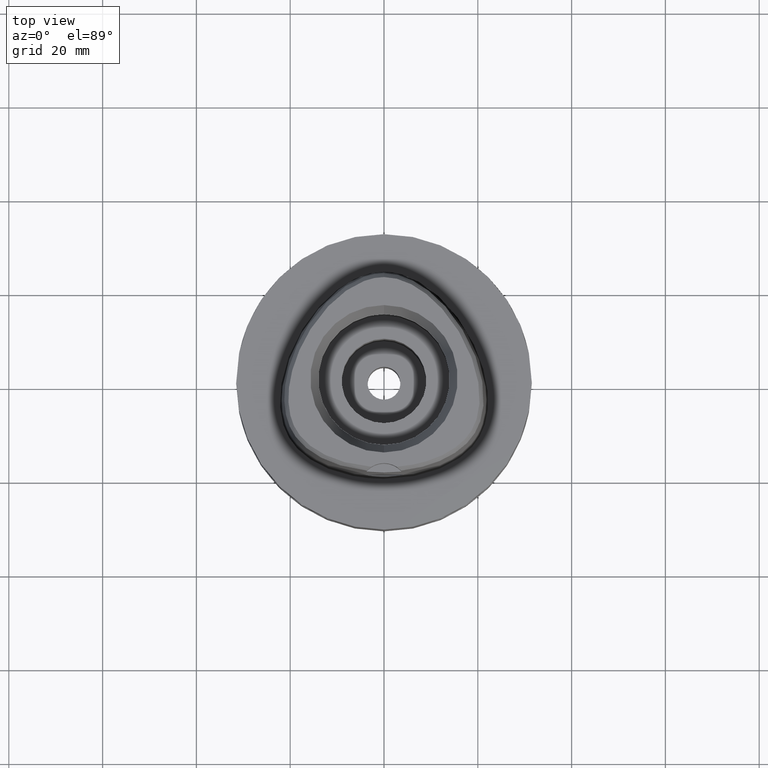
[diagram: clean part render]
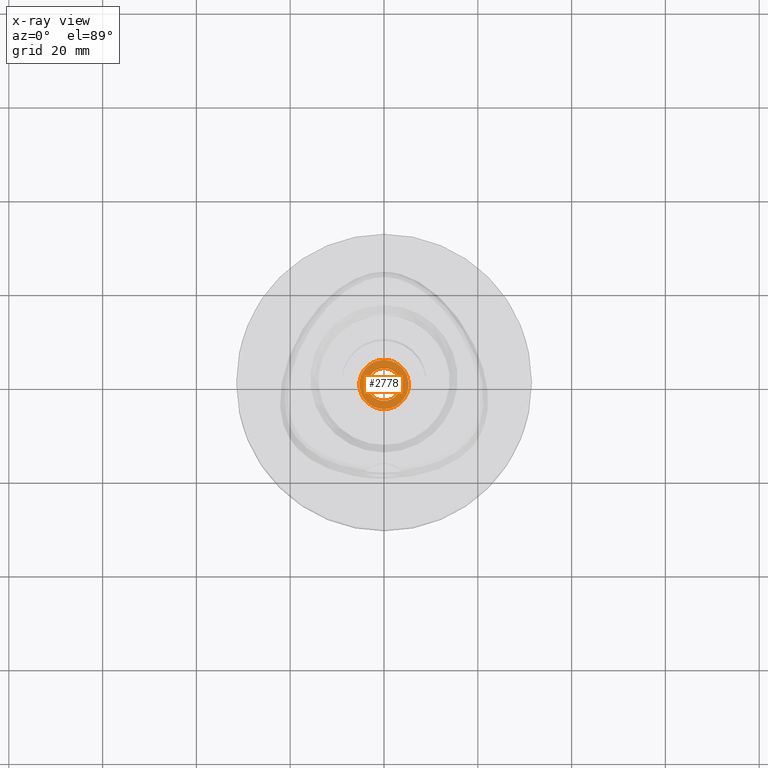
[diagram: x-ray — body ghosted, one internal face saturated and labeled with its STEP entity id]
A machine part, top view, then the same camera in x-ray: the body is ghosted and one INTERNAL B-rep face — a face not visible from any outside direction — is saturated and labeled: STEP entity #2778.
In plain terms, the highlighted planar face has unit normal (0, 0, -1).
Its self-contained STEP definition (entity closure, byte-faithful):
#766=CARTESIAN_POINT('',(0.E0,1.279755905109E-14,-3.28E1));
#767=DIRECTION('',(0.E0,0.E0,1.E0));
#768=DIRECTION('',(0.E0,-1.E0,0.E0));
#769=AXIS2_PLACEMENT_3D('',#766,#767,#768);
#774=CARTESIAN_POINT('',(0.E0,1.279755905109E-14,-3.28E1));
#775=DIRECTION('',(0.E0,0.E0,1.E0));
#776=DIRECTION('',(0.E0,1.E0,0.E0));
#777=AXIS2_PLACEMENT_3D('',#774,#775,#776);
#782=CARTESIAN_POINT('',(0.E0,1.279755905109E-14,-3.28E1));
#783=DIRECTION('',(0.E0,0.E0,-1.E0));
#784=DIRECTION('',(0.E0,-1.E0,0.E0));
#785=AXIS2_PLACEMENT_3D('',#782,#783,#784);
#790=CARTESIAN_POINT('',(0.E0,1.279755905109E-14,-3.28E1));
#791=DIRECTION('',(0.E0,0.E0,-1.E0));
#792=DIRECTION('',(0.E0,1.E0,0.E0));
#793=AXIS2_PLACEMENT_3D('',#790,#791,#792);
#1672=CARTESIAN_POINT('',(0.E0,5.25E0,-3.28E1));
#1673=VERTEX_POINT('',#1672);
#1674=CARTESIAN_POINT('',(0.E0,-5.25E0,-3.28E1));
#1675=VERTEX_POINT('',#1674);
#1676=CARTESIAN_POINT('',(0.E0,-3.5E0,-3.28E1));
#1677=CARTESIAN_POINT('',(0.E0,3.5E0,-3.28E1));
#1678=VERTEX_POINT('',#1676);
#1679=VERTEX_POINT('',#1677);
#2763=CARTESIAN_POINT('',(0.E0,0.E0,-3.28E1));
#2764=DIRECTION('',(0.E0,0.E0,-1.E0));
#2765=DIRECTION('',(0.E0,-1.E0,0.E0));
#2766=AXIS2_PLACEMENT_3D('',#2763,#2764,#2765);
#2767=PLANE('',#2766);
#2768=ORIENTED_EDGE('',*,*,#2756,.T.);
#2769=ORIENTED_EDGE('',*,*,#2745,.T.);
#2770=EDGE_LOOP('',(#2768,#2769));
#2771=FACE_OUTER_BOUND('',#2770,.F.);
#2773=ORIENTED_EDGE('',*,*,#2772,.T.);
#2775=ORIENTED_EDGE('',*,*,#2774,.T.);
#2776=EDGE_LOOP('',(#2773,#2775));
#2777=FACE_BOUND('',#2776,.F.);
#770=CIRCLE('',#769,5.25E0);
#778=CIRCLE('',#777,5.25E0);
#786=CIRCLE('',#785,3.5E0);
#794=CIRCLE('',#793,3.5E0);
#2745=EDGE_CURVE('',#1673,#1675,#778,.T.);
#2756=EDGE_CURVE('',#1675,#1673,#770,.T.);
#2772=EDGE_CURVE('',#1678,#1679,#786,.T.);
#2774=EDGE_CURVE('',#1679,#1678,#794,.T.);
#2778=ADVANCED_FACE('',(#2771,#2777),#2767,.T.);